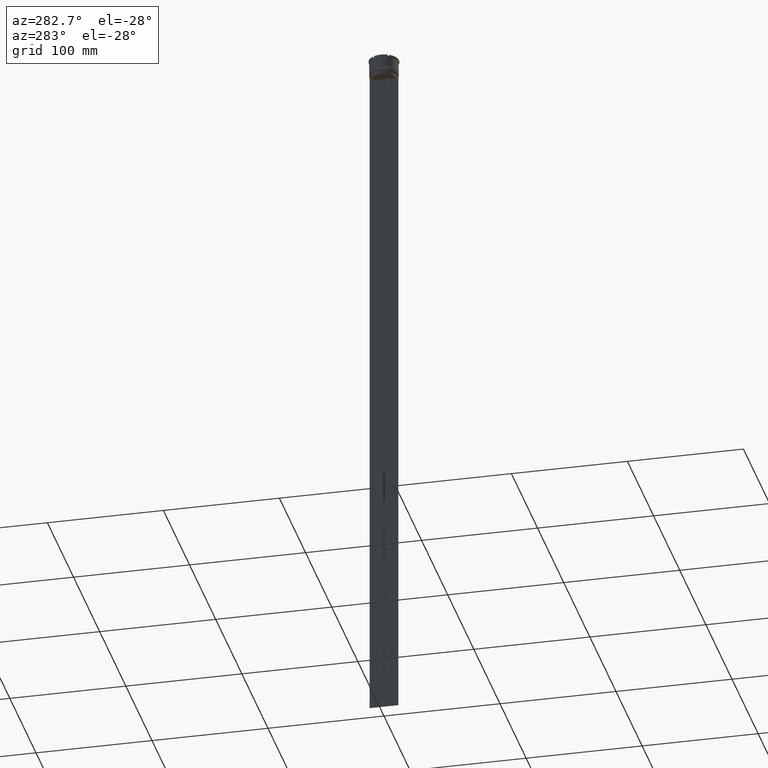
[diagram: clean part render]
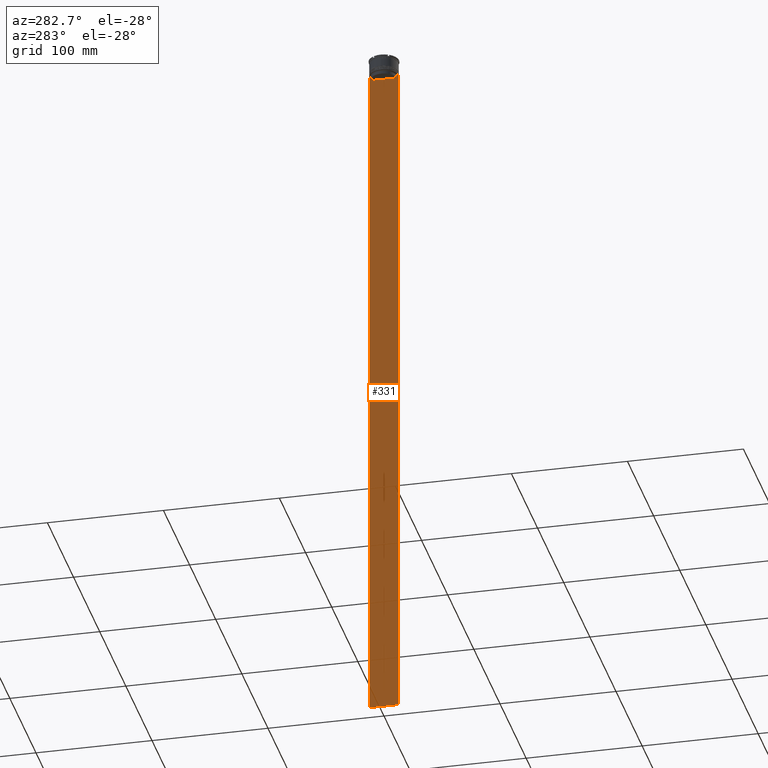
[diagram: same view with one face highlighted and labeled with its STEP entity id]
A machine part, auxiliary view. The second image highlights one B-rep face of the part: STEP entity #331.
In plain terms, the highlighted planar face has unit normal (-1, 0, 0).
Its self-contained STEP definition (entity closure, byte-faithful):
#70 = EDGE_CURVE ( 'NONE', #2231, #1456, #658, .T. ) ;
#97 = LINE ( 'NONE', #2649, #1613 ) ;
#143 = LINE ( 'NONE', #1830, #1387 ) ;
#151 = ORIENTED_EDGE ( 'NONE', *, *, #70, .F. ) ;
#152 = CARTESIAN_POINT ( 'NONE',  ( -0.4999999999999997780, -12.25000000000000711, -614.0000000000000000 ) ) ;
#168 = CARTESIAN_POINT ( 'NONE',  ( -0.4999999999999997780, 11.05536450345590538, -14.33333719074559376 ) ) ;
#212 = CARTESIAN_POINT ( 'NONE',  ( -0.4999999999999997780, 10.88852607105296144, -17.00000000000000000 ) ) ;
#222 = CARTESIAN_POINT ( 'NONE',  ( -0.4999999999999997780, -12.25000000000000711, -14.00000000000000178 ) ) ;
#235 = PLANE ( 'NONE',  #573 ) ;
#251 = ORIENTED_EDGE ( 'NONE', *, *, #1801, .F. ) ;
#331 = ADVANCED_FACE ( 'NONE', ( #2376 ), #235, .T. ) ;
#383 = CARTESIAN_POINT ( 'NONE',  ( -0.4999999999999997780, 11.38902980942626719, -14.00000000000000178 ) ) ;
#384 = CARTESIAN_POINT ( 'NONE',  ( -0.4999999999999997780, 12.24999999999999289, -614.0000000000000000 ) ) ;
#417 = DIRECTION ( 'NONE',  ( 0.000000000000000000, 1.000000000000000000, 0.000000000000000000 ) ) ;
#490 = CARTESIAN_POINT ( 'NONE',  ( -0.4999999999999997780, -11.38902980942626719, -14.00000000000000178 ) ) ;
#492 = VECTOR ( 'NONE', #417, 1000.000000000000000 ) ;
#520 = CARTESIAN_POINT ( 'NONE',  ( -0.4999999999999997780, -10.88852607105296144, -17.00000000000000000 ) ) ;
#563 = DIRECTION ( 'NONE',  ( 0.000000000000000000, 0.000000000000000000, -1.000000000000000000 ) ) ;
#573 = AXIS2_PLACEMENT_3D ( 'NONE', #2364, #2120, #2584 ) ;
#625 = DIRECTION ( 'NONE',  ( 0.000000000000000000, -1.000000000000000000, 0.000000000000000000 ) ) ;
#629 = VECTOR ( 'NONE', #1300, 1000.000000000000000 ) ;
#650 = CARTESIAN_POINT ( 'NONE',  ( -0.4999999999999997780, -10.88852607105296322, 0.000000000000000000 ) ) ;
#658 = B_SPLINE_CURVE_WITH_KNOTS ( 'NONE', 3,
 ( #2008, #974, #1777, #490 ),
 .UNSPECIFIED., .F., .F.,
 ( 4, 4 ),
 ( 0.05041323384703224469, 0.05112713601261603680 ),
 .UNSPECIFIED. ) ;
#716 = VECTOR ( 'NONE', #563, 1000.000000000000000 ) ;
#748 = DIRECTION ( 'NONE',  ( 0.000000000000000000, -1.000000000000000000, 0.000000000000000000 ) ) ;
#812 = DIRECTION ( 'NONE',  ( 0.000000000000000000, 0.000000000000000000, -1.000000000000000000 ) ) ;
#816 = CARTESIAN_POINT ( 'NONE',  ( -0.4999999999999997780, 12.24999999999999289, -14.00000000000000178 ) ) ;
#838 = LINE ( 'NONE', #2739, #2025 ) ;
#851 = CARTESIAN_POINT ( 'NONE',  ( -0.4999999999999997780, 11.22219891375843304, -14.16667035472756808 ) ) ;
#885 = VERTEX_POINT ( 'NONE', #1457 ) ;
#950 = ORIENTED_EDGE ( 'NONE', *, *, #1195, .T. ) ;
#967 = DIRECTION ( 'NONE',  ( 0.000000000000000000, 0.000000000000000000, -1.000000000000000000 ) ) ;
#974 = CARTESIAN_POINT ( 'NONE',  ( -0.4999999999999997780, -11.05536450423839057, -14.33333718996393280 ) ) ;
#999 = LINE ( 'NONE', #2491, #716 ) ;
#1060 = VERTEX_POINT ( 'NONE', #2003 ) ;
#1077 = ORIENTED_EDGE ( 'NONE', *, *, #1366, .F. ) ;
#1157 = EDGE_CURVE ( 'NONE', #1495, #1311, #143, .T. ) ;
#1195 = EDGE_CURVE ( 'NONE', #1659, #2515, #97, .T. ) ;
#1229 = EDGE_LOOP ( 'NONE', ( #1355, #1077, #950, #2109, #1823, #1507, #151, #251, #2517, #2403 ) ) ;
#1286 = EDGE_CURVE ( 'NONE', #885, #1495, #999, .T. ) ;
#1300 = DIRECTION ( 'NONE',  ( 0.000000000000000000, -1.000000000000000000, 0.000000000000000000 ) ) ;
#1311 = VERTEX_POINT ( 'NONE', #520 ) ;
#1314 = LINE ( 'NONE', #2607, #629 ) ;
#1355 = ORIENTED_EDGE ( 'NONE', *, *, #1449, .F. ) ;
#1366 = EDGE_CURVE ( 'NONE', #1659, #1999, #1467, .T. ) ;
#1387 = VECTOR ( 'NONE', #748, 1000.000000000000000 ) ;
#1398 = EDGE_CURVE ( 'NONE', #1060, #2515, #2085, .T. ) ;
#1449 = EDGE_CURVE ( 'NONE', #1999, #885, #1977, .T. ) ;
#1456 = VERTEX_POINT ( 'NONE', #1691 ) ;
#1457 = CARTESIAN_POINT ( 'NONE',  ( -0.4999999999999997780, 10.88852607105296322, -14.50000000000000000 ) ) ;
#1461 = DIRECTION ( 'NONE',  ( -0.000000000000000000, -0.000000000000000000, 1.000000000000000000 ) ) ;
#1467 = LINE ( 'NONE', #2518, #2647 ) ;
#1495 = VERTEX_POINT ( 'NONE', #212 ) ;
#1507 = ORIENTED_EDGE ( 'NONE', *, *, #2617, .F. ) ;
#1613 = VECTOR ( 'NONE', #967, 1000.000000000000000 ) ;
#1659 = VERTEX_POINT ( 'NONE', #816 ) ;
#1691 = CARTESIAN_POINT ( 'NONE',  ( -0.4999999999999997780, -11.38902980942626719, -14.00000000000000178 ) ) ;
#1706 = CARTESIAN_POINT ( 'NONE',  ( -0.4999999999999997780, 10.88852607105296322, -14.50000000000000000 ) ) ;
#1759 = VERTEX_POINT ( 'NONE', #222 ) ;
#1777 = CARTESIAN_POINT ( 'NONE',  ( -0.4999999999999997780, -11.22219891450652973, -14.16667035398018903 ) ) ;
#1793 = VECTOR ( 'NONE', #1461, 1000.000000000000000 ) ;
#1801 = EDGE_CURVE ( 'NONE', #1311, #2231, #2136, .T. ) ;
#1823 = ORIENTED_EDGE ( 'NONE', *, *, #2037, .F. ) ;
#1830 = CARTESIAN_POINT ( 'NONE',  ( -0.4999999999999997780, 10.90000000000000213, -17.00000000000000000 ) ) ;
#1977 = B_SPLINE_CURVE_WITH_KNOTS ( 'NONE', 3,
 ( #383, #851, #168, #1706 ),
 .UNSPECIFIED., .F., .F.,
 ( 4, 4 ),
 ( 0.01935560801904634073, 0.02006307108468586772 ),
 .UNSPECIFIED. ) ;
#1983 = CARTESIAN_POINT ( 'NONE',  ( -0.4999999999999997780, -10.88852607105296322, -14.50000000000000000 ) ) ;
#1999 = VERTEX_POINT ( 'NONE', #2301 ) ;
#2003 = CARTESIAN_POINT ( 'NONE',  ( -0.4999999999999997780, -12.25000000000000711, -614.0000000000000000 ) ) ;
#2008 = CARTESIAN_POINT ( 'NONE',  ( -0.4999999999999997780, -10.88852607105296322, -14.50000000000000000 ) ) ;
#2025 = VECTOR ( 'NONE', #812, 1000.000000000000000 ) ;
#2037 = EDGE_CURVE ( 'NONE', #1759, #1060, #838, .T. ) ;
#2085 = LINE ( 'NONE', #152, #492 ) ;
#2109 = ORIENTED_EDGE ( 'NONE', *, *, #1398, .F. ) ;
#2120 = DIRECTION ( 'NONE',  ( -1.000000000000000000, 0.000000000000000000, 0.000000000000000000 ) ) ;
#2136 = LINE ( 'NONE', #650, #1793 ) ;
#2231 = VERTEX_POINT ( 'NONE', #1983 ) ;
#2301 = CARTESIAN_POINT ( 'NONE',  ( -0.4999999999999997780, 11.38902980942626719, -14.00000000000000178 ) ) ;
#2364 = CARTESIAN_POINT ( 'NONE',  ( -0.4999999999999997780, -12.25000000000000711, 10.52039967047845792 ) ) ;
#2376 = FACE_OUTER_BOUND ( 'NONE', #1229, .T. ) ;
#2403 = ORIENTED_EDGE ( 'NONE', *, *, #1286, .F. ) ;
#2491 = CARTESIAN_POINT ( 'NONE',  ( -0.4999999999999997780, 10.88852607105296322, 0.000000000000000000 ) ) ;
#2515 = VERTEX_POINT ( 'NONE', #384 ) ;
#2517 = ORIENTED_EDGE ( 'NONE', *, *, #1157, .F. ) ;
#2518 = CARTESIAN_POINT ( 'NONE',  ( -0.4999999999999997780, -12.25000000000000711, -14.00000000000000178 ) ) ;
#2584 = DIRECTION ( 'NONE',  ( 0.000000000000000000, 0.000000000000000000, 1.000000000000000000 ) ) ;
#2607 = CARTESIAN_POINT ( 'NONE',  ( -0.4999999999999997780, -12.25000000000000711, -14.00000000000000178 ) ) ;
#2617 = EDGE_CURVE ( 'NONE', #1456, #1759, #1314, .T. ) ;
#2647 = VECTOR ( 'NONE', #625, 1000.000000000000000 ) ;
#2649 = CARTESIAN_POINT ( 'NONE',  ( -0.4999999999999997780, 12.24999999999999289, 10.52039967047845792 ) ) ;
#2739 = CARTESIAN_POINT ( 'NONE',  ( -0.4999999999999997780, -12.25000000000000711, 10.52039967047845792 ) ) ;